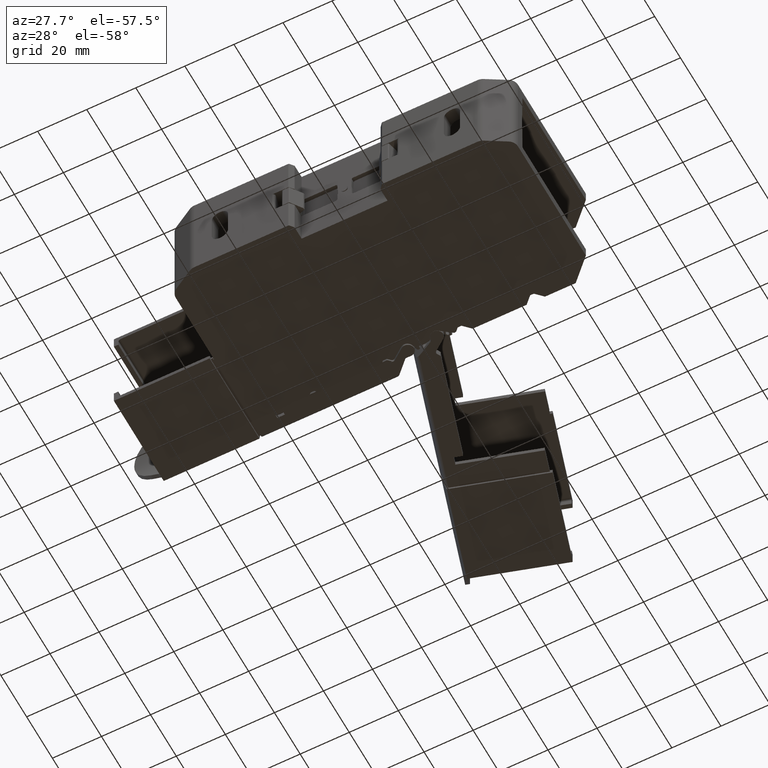
[diagram: clean part render]
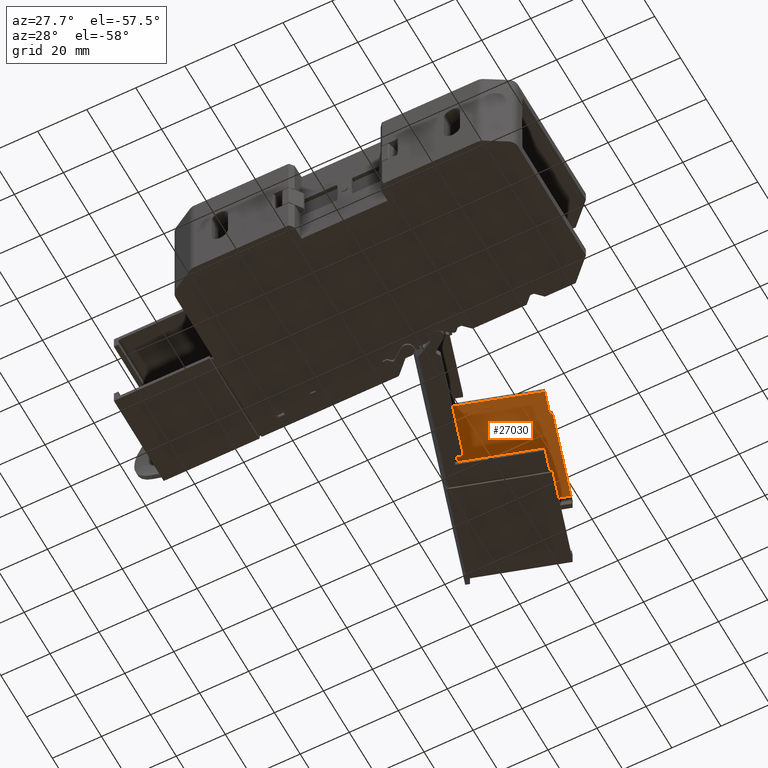
[diagram: same view with one face highlighted and labeled with its STEP entity id]
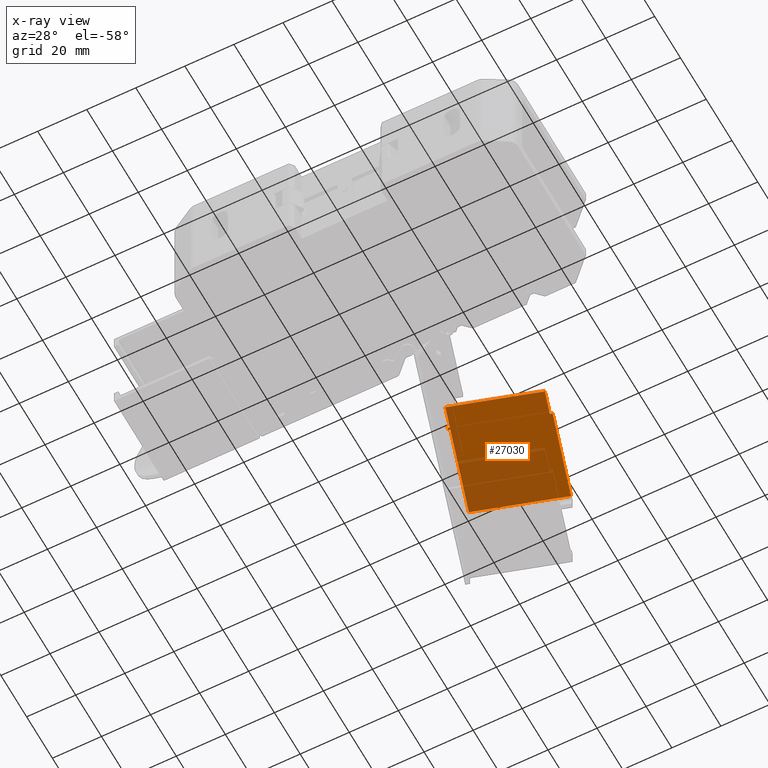
[diagram: x-ray of the same camera — body ghosted, the highlighted face saturated]
A machine part, auxiliary view. The second image highlights one B-rep face of the part: STEP entity #27030.
The next image is the same camera in x-ray: the body ghosted, the highlighted face saturated — about 46% of this face is hidden behind the body in this view.
In plain terms, the highlighted planar face has unit normal (0, -0, 1).
Its self-contained STEP definition (entity closure, byte-faithful):
#16 = VECTOR ( 'NONE', #34493, 1000.000000000000000 ) ;
#23 = VECTOR ( 'NONE', #34559, 1000.000000000000200 ) ;
#44 = VECTOR ( 'NONE', #34553, 1000.000000000000100 ) ;
#46 = VECTOR ( 'NONE', #34568, 1000.000000000000200 ) ;
#53 = VECTOR ( 'NONE', #34671, 1000.000000000000200 ) ;
#404 = VECTOR ( 'NONE', #34073, 1000.000000000000200 ) ;
#494 = VECTOR ( 'NONE', #34091, 999.9999999999998900 ) ;
#573 = VECTOR ( 'NONE', #34172, 1000.000000000000100 ) ;
#3507 = VECTOR ( 'NONE', #5184, 1000.000000000000100 ) ;
#3529 = VECTOR ( 'NONE', #5339, 1000.000000000000100 ) ;
#5182 = LINE ( 'NONE', #5214, #3507 ) ;
#5184 = DIRECTION ( 'NONE',  ( -0.2923717047227393800, 0.9563047559630346600, -6.982962677686257200E-015 ) ) ;
#5214 = CARTESIAN_POINT ( 'NONE',  ( 9.315975114425848200, 249.6230123971604400, 32.54404259331443000 ) ) ;
#5320 = CARTESIAN_POINT ( 'NONE',  ( -30.96970307853774100, 381.3915284020247300, 32.54404259331521100 ) ) ;
#5339 = DIRECTION ( 'NONE',  ( 0.2923717047227327700, -0.9563047559630366600, -3.435665818169125200E-014 ) ) ;
#5340 = LINE ( 'NONE', #5320, #3529 ) ;
#9664 = EDGE_LOOP ( 'NONE', ( #30566, #30592, #30605, #30625, #30565, #30524, #30583, #30533, #30585, #30594 ) ) ;
#10757 = AXIS2_PLACEMENT_3D ( 'NONE', #41078, #41050, #41052 ) ;
#11055 = CARTESIAN_POINT ( 'NONE',  ( -17.59368937183959900, 337.6405589445907400, 32.54404259331377600 ) ) ;
#17614 = VERTEX_POINT ( 'NONE', #37308 ) ;
#17653 = VERTEX_POINT ( 'NONE', #37405 ) ;
#17667 = VERTEX_POINT ( 'NONE', #37481 ) ;
#17688 = VERTEX_POINT ( 'NONE', #37487 ) ;
#17695 = VERTEX_POINT ( 'NONE', #37585 ) ;
#17734 = VERTEX_POINT ( 'NONE', #37589 ) ;
#17740 = VERTEX_POINT ( 'NONE', #37591 ) ;
#17749 = VERTEX_POINT ( 'NONE', #37653 ) ;
#17750 = VERTEX_POINT ( 'NONE', #37529 ) ;
#18630 = VERTEX_POINT ( 'NONE', #11055 ) ;
#25830 = EDGE_CURVE ( 'NONE', #17750, #17695, #34007, .T. ) ;
#25861 = EDGE_CURVE ( 'NONE', #17695, #17653, #34097, .T. ) ;
#25906 = EDGE_CURVE ( 'NONE', #17688, #17740, #34148, .T. ) ;
#26003 = EDGE_CURVE ( 'NONE', #18630, #17749, #34415, .T. ) ;
#26037 = EDGE_CURVE ( 'NONE', #17749, #17734, #34540, .T. ) ;
#26051 = EDGE_CURVE ( 'NONE', #17740, #17667, #34554, .T. ) ;
#26059 = EDGE_CURVE ( 'NONE', #17734, #17750, #34533, .T. ) ;
#26094 = EDGE_CURVE ( 'NONE', #17614, #17688, #34649, .T. ) ;
#27030 = ADVANCED_FACE ( 'NONE', ( #41068 ), #41037, .F. ) ;
#30524 = ORIENTED_EDGE ( 'NONE', *, *, #42034, .T. ) ;
#30533 = ORIENTED_EDGE ( 'NONE', *, *, #25906, .F. ) ;
#30565 = ORIENTED_EDGE ( 'NONE', *, *, #26003, .F. ) ;
#30566 = ORIENTED_EDGE ( 'NONE', *, *, #25861, .F. ) ;
#30583 = ORIENTED_EDGE ( 'NONE', *, *, #26051, .F. ) ;
#30585 = ORIENTED_EDGE ( 'NONE', *, *, #26094, .F. ) ;
#30592 = ORIENTED_EDGE ( 'NONE', *, *, #25830, .F. ) ;
#30594 = ORIENTED_EDGE ( 'NONE', *, *, #42045, .F. ) ;
#30605 = ORIENTED_EDGE ( 'NONE', *, *, #26059, .F. ) ;
#30625 = ORIENTED_EDGE ( 'NONE', *, *, #26037, .F. ) ;
#34007 = LINE ( 'NONE', #34069, #404 ) ;
#34069 = CARTESIAN_POINT ( 'NONE',  ( 15.44165057400476600, 357.9882463911345100, 32.54404259331384000 ) ) ;
#34073 = DIRECTION ( 'NONE',  ( -0.2923717047227271700, 0.9563047559630383200, 3.474268804890295300E-014 ) ) ;
#34091 = DIRECTION ( 'NONE',  ( -0.9563047559630352100, -0.2923717047227380500, 3.327036768532093900E-015 ) ) ;
#34092 = CARTESIAN_POINT ( 'NONE',  ( 4.930877124075347100, 392.3674372521309700, 32.54404259331508300 ) ) ;
#34097 = LINE ( 'NONE', #34092, #494 ) ;
#34148 = LINE ( 'NONE', #34171, #573 ) ;
#34171 = CARTESIAN_POINT ( 'NONE',  ( -21.24168406965436500, 346.7730254923525900, 32.54404259331395400 ) ) ;
#34172 = DIRECTION ( 'NONE',  ( 0.2923717047227406000, -0.9563047559630343300, 0.0000000000000000000 ) ) ;
#34415 = LINE ( 'NONE', #34503, #16 ) ;
#34493 = DIRECTION ( 'NONE',  ( 0.9563047559631515600, 0.2923717047223569600, 0.0000000000000000000 ) ) ;
#34503 = CARTESIAN_POINT ( 'NONE',  ( 67.66896142246554300, 363.7079672748683900, 32.54404259331376900 ) ) ;
#34522 = CARTESIAN_POINT ( 'NONE',  ( 19.37436476612424500, 341.7046066875540200, 32.54404259331394700 ) ) ;
#34533 = LINE ( 'NONE', #34562, #46 ) ;
#34540 = LINE ( 'NONE', #34522, #44 ) ;
#34553 = DIRECTION ( 'NONE',  ( -0.2923717047227388800, 0.9563047559630347700, 0.0000000000000000000 ) ) ;
#34554 = LINE ( 'NONE', #34565, #23 ) ;
#34559 = DIRECTION ( 'NONE',  ( 0.9563047559629526100, 0.2923717047230074400, -8.477367733054025600E-015 ) ) ;
#34562 = CARTESIAN_POINT ( 'NONE',  ( 14.48534370129989000, 357.6958740392588500, 32.54404259331384700 ) ) ;
#34565 = CARTESIAN_POINT ( 'NONE',  ( -20.94931286159289700, 345.8167223608953700, 32.54404259331393900 ) ) ;
#34568 = DIRECTION ( 'NONE',  ( 0.9563047559630304400, 0.2923717047227529800, -6.938878544980592400E-015 ) ) ;
#34648 = CARTESIAN_POINT ( 'NONE',  ( -20.45892962860761000, 347.0123375410266800, 32.54404259331397500 ) ) ;
#34649 = LINE ( 'NONE', #34648, #53 ) ;
#34671 = DIRECTION ( 'NONE',  ( -0.9563047559636830300, -0.2923717047206185700, 0.0000000000000000000 ) ) ;
#37308 = CARTESIAN_POINT ( 'NONE',  ( -20.45892962860777700, 347.0123375410271400, 32.54404259331396800 ) ) ;
#37405 = CARTESIAN_POINT ( 'NONE',  ( -30.96970307853776200, 381.3915284020247300, 32.54404259331451500 ) ) ;
#37481 = CARTESIAN_POINT ( 'NONE',  ( -20.16655842054681700, 346.0560344095714500, 32.54404259331378300 ) ) ;
#37487 = CARTESIAN_POINT ( 'NONE',  ( -21.24168406965434700, 346.7730254923525900, 32.54404259331395400 ) ) ;
#37529 = CARTESIAN_POINT ( 'NONE',  ( 15.44165057400477000, 357.9882463911345100, 32.54404259331383300 ) ) ;
#37585 = CARTESIAN_POINT ( 'NONE',  ( 4.930877124075347100, 392.3674372521309700, 32.54404259331433700 ) ) ;
#37589 = CARTESIAN_POINT ( 'NONE',  ( 14.48534370129988600, 357.6958740392588500, 32.54404259331387500 ) ) ;
#37591 = CARTESIAN_POINT ( 'NONE',  ( -20.94931286159289400, 345.8167223608953700, 32.54404259331387500 ) ) ;
#37653 = CARTESIAN_POINT ( 'NONE',  ( 17.35058395807165600, 348.3240954428106900, 32.54404259331389700 ) ) ;
#41037 = PLANE ( 'NONE',  #10757 ) ;
#41050 = DIRECTION ( 'NONE',  ( 1.340096282132972200E-014, -3.201153603654070200E-014, 1.000000000000000000 ) ) ;
#41052 = DIRECTION ( 'NONE',  ( 0.0000000000000000000, -1.000000000000000000, -3.201153603654070200E-014 ) ) ;
#41068 = FACE_OUTER_BOUND ( 'NONE', #9664, .T. ) ;
#41078 = CARTESIAN_POINT ( 'NONE',  ( 13.09870433942214000, 357.2719358422149900, 32.54404259331385400 ) ) ;
#42034 = EDGE_CURVE ( 'NONE', #18630, #17667, #5182, .T. ) ;
#42045 = EDGE_CURVE ( 'NONE', #17653, #17614, #5340, .T. ) ;